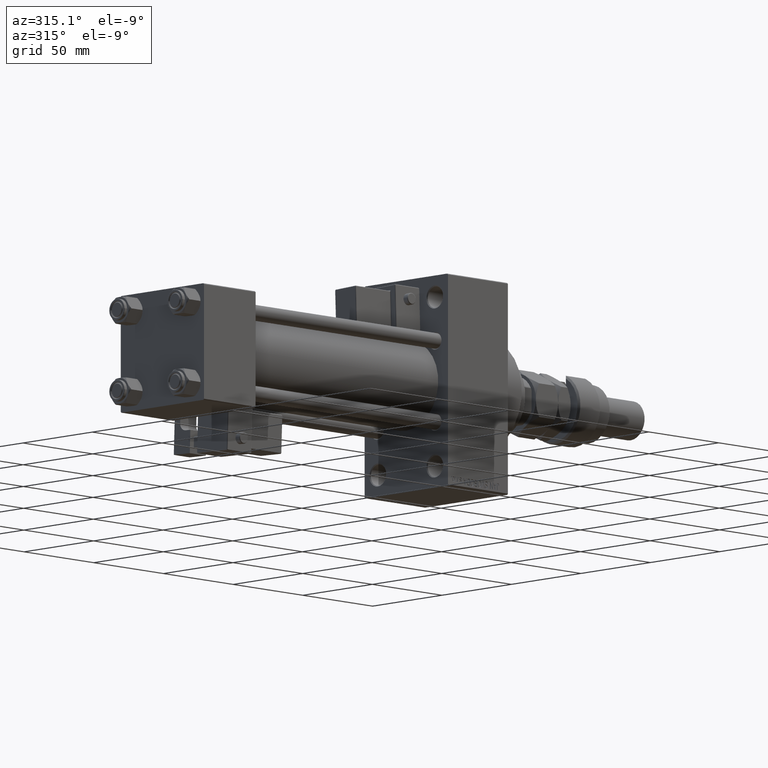
[diagram: clean part render]
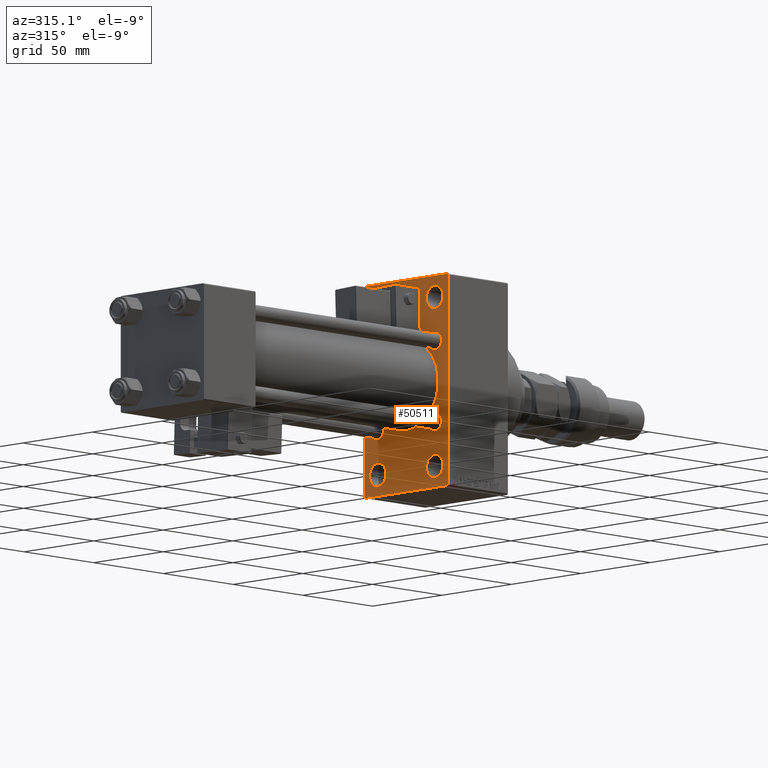
[diagram: same view with one face highlighted and labeled with its STEP entity id]
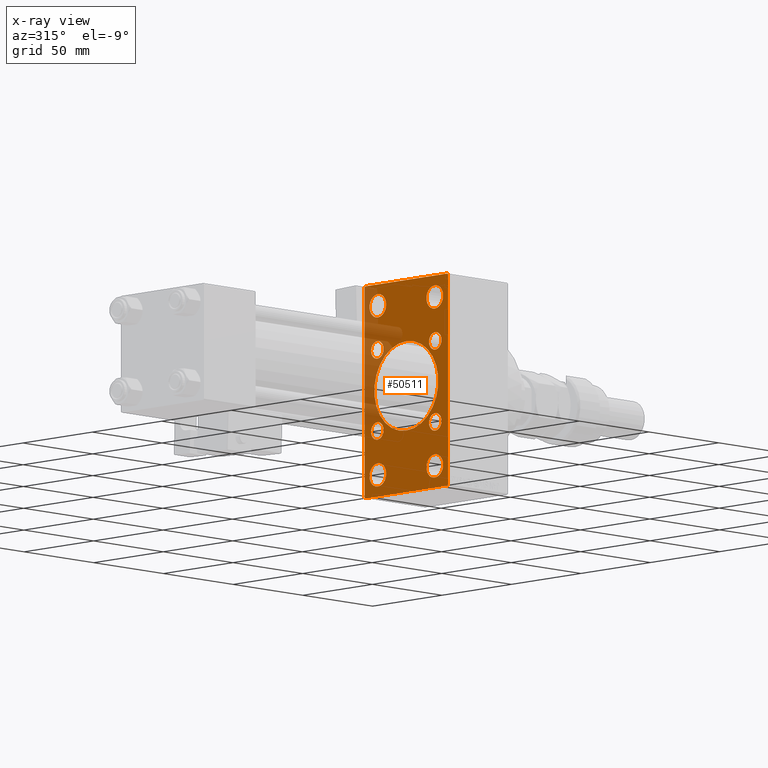
[diagram: x-ray of the same camera — body ghosted, the highlighted face saturated]
A machine part, auxiliary view. The second image highlights one B-rep face of the part: STEP entity #50511.
The next image is the same camera in x-ray: the body ghosted, the highlighted face saturated — about 18% of this face is hidden behind the body in this view.
In plain terms, the highlighted planar face has unit normal (-1, 0, 0).
Its self-contained STEP definition (entity closure, byte-faithful):
#94 = CARTESIAN_POINT ( 'NONE',  ( 175.0000000000000284, -20.50000000000000000, -37.50000000000015632 ) ) ;
#142 = CARTESIAN_POINT ( 'NONE',  ( 175.0000000000000284, -29.49999999999997513, -54.50000000000000000 ) ) ;
#506 = DIRECTION ( 'NONE',  ( 0.000000000000000000, -1.000000000000000000, -1.156482317317871478E-16 ) ) ;
#706 = FACE_BOUND ( 'NONE', #8835, .T. ) ;
#879 = CARTESIAN_POINT ( 'NONE',  ( 175.0000000000000284, -20.84999999999999076, -20.85000000000000497 ) ) ;
#1020 = ORIENTED_EDGE ( 'NONE', *, *, #11950, .F. ) ;
#1293 = LINE ( 'NONE', #9044, #45345 ) ;
#1540 = ORIENTED_EDGE ( 'NONE', *, *, #9082, .T. ) ;
#1542 = DIRECTION ( 'NONE',  ( 0.000000000000000000, 0.000000000000000000, 1.000000000000000000 ) ) ;
#1861 = DIRECTION ( 'NONE',  ( 0.000000000000000000, 0.000000000000000000, 1.000000000000000000 ) ) ;
#1889 = DIRECTION ( 'NONE',  ( 0.000000000000000000, 0.000000000000000000, 1.000000000000000000 ) ) ;
#1958 = DIRECTION ( 'NONE',  ( 0.000000000000000000, 0.000000000000000000, 1.000000000000000000 ) ) ;
#1980 = CARTESIAN_POINT ( 'NONE',  ( 175.0000000000000284, 2.146024240737016609E-16, -23.00000000000000000 ) ) ;
#2001 = DIRECTION ( 'NONE',  ( 0.000000000000000000, 0.000000000000000000, 1.000000000000000000 ) ) ;
#2384 = DIRECTION ( 'NONE',  ( 1.000000000000000000, -0.000000000000000000, 0.000000000000000000 ) ) ;
#2586 = CARTESIAN_POINT ( 'NONE',  ( 175.0000000000000284, 29.99999999999999645, -54.00000000000002132 ) ) ;
#2615 = LINE ( 'NONE', #19484, #51071 ) ;
#2727 = CARTESIAN_POINT ( 'NONE',  ( 175.0000000000000284, -20.84999999999999076, 16.34999999999999787 ) ) ;
#2896 = EDGE_CURVE ( 'NONE', #13635, #42155, #49731, .T. ) ;
#2927 = DIRECTION ( 'NONE',  ( 0.000000000000000000, 0.000000000000000000, 1.000000000000000000 ) ) ;
#3303 = EDGE_LOOP ( 'NONE', ( #7071, #8758 ) ) ;
#3494 = VERTEX_POINT ( 'NONE', #29138 ) ;
#3579 = CARTESIAN_POINT ( 'NONE',  ( 175.0000000000000284, -2.602085213965210642E-15, 0.000000000000000000 ) ) ;
#4135 = AXIS2_PLACEMENT_3D ( 'NONE', #43048, #29251, #46648 ) ;
#4187 = EDGE_CURVE ( 'NONE', #45127, #31761, #33213, .T. ) ;
#4719 = DIRECTION ( 'NONE',  ( 1.000000000000000000, -0.000000000000000000, 0.000000000000000000 ) ) ;
#5458 = DIRECTION ( 'NONE',  ( 1.000000000000000000, 0.000000000000000000, 0.000000000000000000 ) ) ;
#6017 = CIRCLE ( 'NONE', #8658, 5.999999999999838352 ) ;
#6352 = CARTESIAN_POINT ( 'NONE',  ( 175.0000000000000284, 20.50000000000000000, -49.49999999999983658 ) ) ;
#6489 = DIRECTION ( 'NONE',  ( 1.000000000000000000, -0.000000000000000000, 0.000000000000000000 ) ) ;
#6797 = VERTEX_POINT ( 'NONE', #2586 ) ;
#6933 = VECTOR ( 'NONE', #24032, 1000.000000000000000 ) ;
#7030 = VERTEX_POINT ( 'NONE', #1980 ) ;
#7040 = DIRECTION ( 'NONE',  ( 0.000000000000000000, 0.000000000000000000, 1.000000000000000000 ) ) ;
#7071 = ORIENTED_EDGE ( 'NONE', *, *, #4187, .T. ) ;
#7091 = DIRECTION ( 'NONE',  ( 0.000000000000000000, 0.000000000000000000, 1.000000000000000000 ) ) ;
#7095 = DIRECTION ( 'NONE',  ( 0.000000000000000000, 0.000000000000000000, 1.000000000000000000 ) ) ;
#7539 = EDGE_CURVE ( 'NONE', #51607, #53863, #32377, .T. ) ;
#7588 = EDGE_CURVE ( 'NONE', #26087, #13635, #46113, .T. ) ;
#7597 = CARTESIAN_POINT ( 'NONE',  ( 175.0000000000000284, 20.84999999999999787, -16.34999999999999432 ) ) ;
#7720 = AXIS2_PLACEMENT_3D ( 'NONE', #34809, #52221, #22116 ) ;
#8253 = CARTESIAN_POINT ( 'NONE',  ( 175.0000000000000284, 29.99999999999999645, -54.49999999999999289 ) ) ;
#8541 = VERTEX_POINT ( 'NONE', #44141 ) ;
#8658 = AXIS2_PLACEMENT_3D ( 'NONE', #28022, #6489, #7040 ) ;
#8758 = ORIENTED_EDGE ( 'NONE', *, *, #31280, .T. ) ;
#8835 = EDGE_LOOP ( 'NONE', ( #52134, #52389 ) ) ;
#9044 = CARTESIAN_POINT ( 'NONE',  ( 175.0000000000000284, -30.00000000000000000, 54.50000000000000000 ) ) ;
#9082 = EDGE_CURVE ( 'NONE', #7030, #13464, #27980, .T. ) ;
#9208 = DIRECTION ( 'NONE',  ( 1.000000000000000000, -0.000000000000000000, 0.000000000000000000 ) ) ;
#9537 = ORIENTED_EDGE ( 'NONE', *, *, #2896, .T. ) ;
#9610 = EDGE_LOOP ( 'NONE', ( #43848, #31065 ) ) ;
#9658 = CARTESIAN_POINT ( 'NONE',  ( 175.0000000000000284, 29.50000000000002132, -54.49999999999999289 ) ) ;
#9877 = CIRCLE ( 'NONE', #52213, 4.500000000000007105 ) ;
#9980 = CARTESIAN_POINT ( 'NONE',  ( 175.0000000000000284, 29.49999999999996803, 54.49999999999999289 ) ) ;
#10129 = CARTESIAN_POINT ( 'NONE',  ( 175.0000000000000284, -20.84999999999999076, 20.85000000000000497 ) ) ;
#10346 = CIRCLE ( 'NONE', #7720, 5.999999999999838352 ) ;
#10421 = CARTESIAN_POINT ( 'NONE',  ( 175.0000000000000284, -20.84999999999999076, 20.85000000000000497 ) ) ;
#10424 = DIRECTION ( 'NONE',  ( 1.000000000000000000, -0.000000000000000000, 0.000000000000000000 ) ) ;
#10553 = ORIENTED_EDGE ( 'NONE', *, *, #36800, .T. ) ;
#10706 = CARTESIAN_POINT ( 'NONE',  ( 175.0000000000000284, -20.50000000000000000, -43.50000000000000000 ) ) ;
#11042 = EDGE_CURVE ( 'NONE', #6797, #26087, #36355, .T. ) ;
#11056 = CARTESIAN_POINT ( 'NONE',  ( 175.0000000000000284, 29.99999999999999645, 54.49999999999999289 ) ) ;
#11057 = AXIS2_PLACEMENT_3D ( 'NONE', #36464, #11326, #32044 ) ;
#11066 = DIRECTION ( 'NONE',  ( 0.000000000000000000, 0.7071067811865474617, -0.7071067811865474617 ) ) ;
#11326 = DIRECTION ( 'NONE',  ( 1.000000000000000000, -0.000000000000000000, 0.000000000000000000 ) ) ;
#11362 = AXIS2_PLACEMENT_3D ( 'NONE', #47056, #9208, #38241 ) ;
#11383 = EDGE_CURVE ( 'NONE', #50423, #33395, #2615, .T. ) ;
#11746 = ORIENTED_EDGE ( 'NONE', *, *, #11383, .T. ) ;
#11950 = EDGE_CURVE ( 'NONE', #46604, #33395, #22959, .T. ) ;
#12771 = EDGE_CURVE ( 'NONE', #16549, #35217, #31699, .T. ) ;
#13037 = DIRECTION ( 'NONE',  ( 0.000000000000000000, 0.000000000000000000, 1.000000000000000000 ) ) ;
#13142 = FACE_BOUND ( 'NONE', #37863, .T. ) ;
#13464 = VERTEX_POINT ( 'NONE', #39676 ) ;
#13565 = CARTESIAN_POINT ( 'NONE',  ( 175.0000000000000284, 20.50000000000000000, 43.50000000000000000 ) ) ;
#13618 = AXIS2_PLACEMENT_3D ( 'NONE', #49101, #10424, #7095 ) ;
#13635 = VERTEX_POINT ( 'NONE', #142 ) ;
#13833 = VECTOR ( 'NONE', #506, 1000.000000000000000 ) ;
#13949 = FACE_BOUND ( 'NONE', #50047, .T. ) ;
#14460 = DIRECTION ( 'NONE',  ( 0.000000000000000000, 0.000000000000000000, -1.000000000000000000 ) ) ;
#15691 = AXIS2_PLACEMENT_3D ( 'NONE', #3579, #40881, #45037 ) ;
#15694 = DIRECTION ( 'NONE',  ( 0.000000000000000000, 0.000000000000000000, 1.000000000000000000 ) ) ;
#15730 = EDGE_LOOP ( 'NONE', ( #23105, #51773 ) ) ;
#15906 = CARTESIAN_POINT ( 'NONE',  ( 175.0000000000000284, 42.00000000000000711, -42.00000000000000711 ) ) ;
#16351 = CIRCLE ( 'NONE', #45451, 4.500000000000007105 ) ;
#16549 = VERTEX_POINT ( 'NONE', #34009 ) ;
#17148 = EDGE_CURVE ( 'NONE', #53863, #51607, #51272, .T. ) ;
#17557 = PLANE ( 'NONE',  #42992 ) ;
#17853 = DIRECTION ( 'NONE',  ( 1.000000000000000000, -0.000000000000000000, 0.000000000000000000 ) ) ;
#17896 = DIRECTION ( 'NONE',  ( 0.000000000000000000, 0.000000000000000000, -1.000000000000000000 ) ) ;
#17970 = ORIENTED_EDGE ( 'NONE', *, *, #42132, .T. ) ;
#18070 = CIRCLE ( 'NONE', #29556, 4.500000000000007105 ) ;
#18120 = CARTESIAN_POINT ( 'NONE',  ( 175.0000000000000284, -20.50000000000000000, 43.50000000000000000 ) ) ;
#18357 = VERTEX_POINT ( 'NONE', #34309 ) ;
#18813 = DIRECTION ( 'NONE',  ( 1.000000000000000000, -0.000000000000000000, 0.000000000000000000 ) ) ;
#19015 = DIRECTION ( 'NONE',  ( 1.000000000000000000, -0.000000000000000000, 0.000000000000000000 ) ) ;
#19198 = CARTESIAN_POINT ( 'NONE',  ( 175.0000000000000284, 20.50000000000000000, 37.50000000000015632 ) ) ;
#19484 = CARTESIAN_POINT ( 'NONE',  ( 175.0000000000000284, -42.00000000000011369, 41.99999999999982236 ) ) ;
#20116 = AXIS2_PLACEMENT_3D ( 'NONE', #10706, #43585, #1861 ) ;
#20892 = ORIENTED_EDGE ( 'NONE', *, *, #31600, .T. ) ;
#21072 = DIRECTION ( 'NONE',  ( 1.000000000000000000, -0.000000000000000000, 0.000000000000000000 ) ) ;
#21096 = EDGE_CURVE ( 'NONE', #31160, #38738, #9877, .T. ) ;
#22116 = DIRECTION ( 'NONE',  ( 0.000000000000000000, 0.000000000000000000, 1.000000000000000000 ) ) ;
#22736 = DIRECTION ( 'NONE',  ( 1.000000000000000000, -0.000000000000000000, 0.000000000000000000 ) ) ;
#22892 = EDGE_LOOP ( 'NONE', ( #33147, #32203 ) ) ;
#22907 = ORIENTED_EDGE ( 'NONE', *, *, #35475, .T. ) ;
#22959 = LINE ( 'NONE', #11056, #6933 ) ;
#23039 = CARTESIAN_POINT ( 'NONE',  ( 175.0000000000000284, 29.99999999999999645, 54.49999999999999289 ) ) ;
#23105 = ORIENTED_EDGE ( 'NONE', *, *, #33742, .T. ) ;
#23299 = ORIENTED_EDGE ( 'NONE', *, *, #7588, .T. ) ;
#23580 = LINE ( 'NONE', #23039, #31636 ) ;
#24032 = DIRECTION ( 'NONE',  ( 0.000000000000000000, -1.000000000000000000, 1.156482317317871478E-16 ) ) ;
#24296 = ORIENTED_EDGE ( 'NONE', *, *, #11042, .T. ) ;
#25387 = CARTESIAN_POINT ( 'NONE',  ( 175.0000000000000284, 20.50000000000000000, 49.49999999999983658 ) ) ;
#25708 = CARTESIAN_POINT ( 'NONE',  ( 175.0000000000000284, -20.84999999999999076, -20.85000000000000497 ) ) ;
#25946 = VERTEX_POINT ( 'NONE', #31812 ) ;
#26087 = VERTEX_POINT ( 'NONE', #9658 ) ;
#26088 = DIRECTION ( 'NONE',  ( -0.000000000000000000, 0.000000000000000000, 1.000000000000000000 ) ) ;
#26158 = AXIS2_PLACEMENT_3D ( 'NONE', #53543, #19015, #15694 ) ;
#26272 = VECTOR ( 'NONE', #32479, 1000.000000000000114 ) ;
#26289 = EDGE_CURVE ( 'NONE', #50423, #42155, #1293, .T. ) ;
#26365 = CARTESIAN_POINT ( 'NONE',  ( 175.0000000000000284, -30.00000000000000000, 54.00000000000002842 ) ) ;
#26495 = EDGE_LOOP ( 'NONE', ( #30622, #26641 ) ) ;
#26641 = ORIENTED_EDGE ( 'NONE', *, *, #12771, .T. ) ;
#26868 = AXIS2_PLACEMENT_3D ( 'NONE', #10129, #2384, #2927 ) ;
#27268 = EDGE_CURVE ( 'NONE', #8541, #54127, #37452, .T. ) ;
#27932 = AXIS2_PLACEMENT_3D ( 'NONE', #52452, #39745, #1889 ) ;
#27980 = CIRCLE ( 'NONE', #15691, 23.00000000000000000 ) ;
#28022 = CARTESIAN_POINT ( 'NONE',  ( 175.0000000000000284, 20.50000000000000000, -43.50000000000000000 ) ) ;
#28111 = EDGE_CURVE ( 'NONE', #35217, #16549, #18070, .T. ) ;
#28141 = AXIS2_PLACEMENT_3D ( 'NONE', #879, #18813, #1958 ) ;
#29138 = CARTESIAN_POINT ( 'NONE',  ( 175.0000000000000284, -20.50000000000000000, 49.49999999999983658 ) ) ;
#29251 = DIRECTION ( 'NONE',  ( 1.000000000000000000, -0.000000000000000000, 0.000000000000000000 ) ) ;
#29556 = AXIS2_PLACEMENT_3D ( 'NONE', #25708, #4719, #43122 ) ;
#29710 = FACE_BOUND ( 'NONE', #15730, .T. ) ;
#29983 = FACE_OUTER_BOUND ( 'NONE', #35528, .T. ) ;
#30196 = CARTESIAN_POINT ( 'NONE',  ( 175.0000000000000284, -20.50000000000000000, -49.49999999999983658 ) ) ;
#30530 = VECTOR ( 'NONE', #11066, 1000.000000000000114 ) ;
#30622 = ORIENTED_EDGE ( 'NONE', *, *, #28111, .T. ) ;
#31065 = ORIENTED_EDGE ( 'NONE', *, *, #7539, .T. ) ;
#31160 = VERTEX_POINT ( 'NONE', #42379 ) ;
#31280 = EDGE_CURVE ( 'NONE', #31761, #45127, #16351, .T. ) ;
#31483 = AXIS2_PLACEMENT_3D ( 'NONE', #34208, #5458, #17896 ) ;
#31600 = EDGE_CURVE ( 'NONE', #18357, #35341, #33116, .T. ) ;
#31636 = VECTOR ( 'NONE', #14460, 1000.000000000000000 ) ;
#31699 = CIRCLE ( 'NONE', #28141, 4.500000000000007105 ) ;
#31761 = VERTEX_POINT ( 'NONE', #42993 ) ;
#31812 = CARTESIAN_POINT ( 'NONE',  ( 175.0000000000000284, -20.50000000000000000, 37.50000000000015632 ) ) ;
#32044 = DIRECTION ( 'NONE',  ( 0.000000000000000000, 0.000000000000000000, 1.000000000000000000 ) ) ;
#32203 = ORIENTED_EDGE ( 'NONE', *, *, #51985, .T. ) ;
#32220 = CARTESIAN_POINT ( 'NONE',  ( 175.0000000000000284, -30.00000000000000000, -53.99999999999995737 ) ) ;
#32377 = CIRCLE ( 'NONE', #4135, 5.999999999999838352 ) ;
#32479 = DIRECTION ( 'NONE',  ( -0.000000000000000000, -0.7071067811865474617, -0.7071067811865474617 ) ) ;
#32883 = LINE ( 'NONE', #40895, #30530 ) ;
#33116 = CIRCLE ( 'NONE', #11057, 5.999999999999838352 ) ;
#33147 = ORIENTED_EDGE ( 'NONE', *, *, #35158, .T. ) ;
#33213 = CIRCLE ( 'NONE', #26158, 4.500000000000007105 ) ;
#33395 = VERTEX_POINT ( 'NONE', #42866 ) ;
#33599 = EDGE_CURVE ( 'NONE', #46604, #48524, #32883, .T. ) ;
#33742 = EDGE_CURVE ( 'NONE', #54127, #8541, #37647, .T. ) ;
#34009 = CARTESIAN_POINT ( 'NONE',  ( 175.0000000000000284, -20.84999999999999076, -25.35000000000001208 ) ) ;
#34208 = CARTESIAN_POINT ( 'NONE',  ( 175.0000000000000284, -2.602085213965210642E-15, 0.000000000000000000 ) ) ;
#34309 = CARTESIAN_POINT ( 'NONE',  ( 175.0000000000000284, 20.50000000000000000, -37.50000000000015632 ) ) ;
#34404 = CARTESIAN_POINT ( 'NONE',  ( 175.0000000000000284, 0.000000000000000000, 0.000000000000000000 ) ) ;
#34726 = ORIENTED_EDGE ( 'NONE', *, *, #26289, .F. ) ;
#34809 = CARTESIAN_POINT ( 'NONE',  ( 175.0000000000000284, -20.50000000000000000, -43.50000000000000000 ) ) ;
#34817 = CIRCLE ( 'NONE', #26868, 4.500000000000007105 ) ;
#34841 = ORIENTED_EDGE ( 'NONE', *, *, #37932, .T. ) ;
#35002 = DIRECTION ( 'NONE',  ( 0.000000000000000000, 0.000000000000000000, -1.000000000000000000 ) ) ;
#35158 = EDGE_CURVE ( 'NONE', #39204, #36164, #10346, .T. ) ;
#35217 = VERTEX_POINT ( 'NONE', #49176 ) ;
#35341 = VERTEX_POINT ( 'NONE', #6352 ) ;
#35475 = EDGE_CURVE ( 'NONE', #13464, #7030, #45624, .T. ) ;
#35528 = EDGE_LOOP ( 'NONE', ( #23299, #9537, #34726, #11746, #1020, #48456, #34841, #24296 ) ) ;
#36161 = CARTESIAN_POINT ( 'NONE',  ( 175.0000000000000284, 20.84999999999999787, 25.35000000000000853 ) ) ;
#36164 = VERTEX_POINT ( 'NONE', #30196 ) ;
#36355 = LINE ( 'NONE', #15906, #26272 ) ;
#36464 = CARTESIAN_POINT ( 'NONE',  ( 175.0000000000000284, 20.50000000000000000, -43.50000000000000000 ) ) ;
#36800 = EDGE_CURVE ( 'NONE', #35341, #18357, #6017, .T. ) ;
#37452 = CIRCLE ( 'NONE', #13618, 4.500000000000007105 ) ;
#37564 = CARTESIAN_POINT ( 'NONE',  ( 175.0000000000000284, -42.00000000000049738, -41.99999999999904077 ) ) ;
#37647 = CIRCLE ( 'NONE', #27932, 4.500000000000007105 ) ;
#37863 = EDGE_LOOP ( 'NONE', ( #22907, #1540 ) ) ;
#37932 = EDGE_CURVE ( 'NONE', #48524, #6797, #23580, .T. ) ;
#38241 = DIRECTION ( 'NONE',  ( 0.000000000000000000, 0.000000000000000000, 1.000000000000000000 ) ) ;
#38278 = FACE_BOUND ( 'NONE', #22892, .T. ) ;
#38459 = AXIS2_PLACEMENT_3D ( 'NONE', #18120, #17853, #1542 ) ;
#38738 = VERTEX_POINT ( 'NONE', #2727 ) ;
#39204 = VERTEX_POINT ( 'NONE', #94 ) ;
#39676 = CARTESIAN_POINT ( 'NONE',  ( 175.0000000000000284, -2.602085213965210642E-15, 23.00000000000000000 ) ) ;
#39745 = DIRECTION ( 'NONE',  ( 1.000000000000000000, -0.000000000000000000, 0.000000000000000000 ) ) ;
#40881 = DIRECTION ( 'NONE',  ( 1.000000000000000000, 0.000000000000000000, 0.000000000000000000 ) ) ;
#40895 = CARTESIAN_POINT ( 'NONE',  ( 175.0000000000000284, 41.99999999999997158, 41.99999999999997158 ) ) ;
#42132 = EDGE_CURVE ( 'NONE', #38738, #31160, #34817, .T. ) ;
#42155 = VERTEX_POINT ( 'NONE', #32220 ) ;
#42158 = FACE_BOUND ( 'NONE', #3303, .T. ) ;
#42379 = CARTESIAN_POINT ( 'NONE',  ( 175.0000000000000284, -20.84999999999999076, 25.35000000000001208 ) ) ;
#42866 = CARTESIAN_POINT ( 'NONE',  ( 175.0000000000000284, -29.50000000000002842, 54.50000000000000000 ) ) ;
#42992 = AXIS2_PLACEMENT_3D ( 'NONE', #34404, #51261, #26088 ) ;
#42993 = CARTESIAN_POINT ( 'NONE',  ( 175.0000000000000284, 20.84999999999999787, 16.34999999999999432 ) ) ;
#43048 = CARTESIAN_POINT ( 'NONE',  ( 175.0000000000000284, 20.50000000000000000, 43.50000000000000000 ) ) ;
#43122 = DIRECTION ( 'NONE',  ( 0.000000000000000000, 0.000000000000000000, 1.000000000000000000 ) ) ;
#43585 = DIRECTION ( 'NONE',  ( 1.000000000000000000, -0.000000000000000000, 0.000000000000000000 ) ) ;
#43728 = CARTESIAN_POINT ( 'NONE',  ( 175.0000000000000284, 20.84999999999999787, 20.85000000000000142 ) ) ;
#43848 = ORIENTED_EDGE ( 'NONE', *, *, #17148, .T. ) ;
#44141 = CARTESIAN_POINT ( 'NONE',  ( 175.0000000000000284, 20.84999999999999787, -25.35000000000000853 ) ) ;
#44447 = EDGE_CURVE ( 'NONE', #3494, #25946, #49072, .T. ) ;
#45037 = DIRECTION ( 'NONE',  ( 0.000000000000000000, 0.000000000000000000, -1.000000000000000000 ) ) ;
#45127 = VERTEX_POINT ( 'NONE', #36161 ) ;
#45345 = VECTOR ( 'NONE', #35002, 1000.000000000000000 ) ;
#45451 = AXIS2_PLACEMENT_3D ( 'NONE', #43728, #22736, #2001 ) ;
#45624 = CIRCLE ( 'NONE', #31483, 23.00000000000000000 ) ;
#45797 = CIRCLE ( 'NONE', #11362, 5.999999999999838352 ) ;
#45977 = CARTESIAN_POINT ( 'NONE',  ( 175.0000000000000284, 29.99999999999999645, 53.99999999999996447 ) ) ;
#46113 = LINE ( 'NONE', #8253, #13833 ) ;
#46604 = VERTEX_POINT ( 'NONE', #9980 ) ;
#46648 = DIRECTION ( 'NONE',  ( 0.000000000000000000, 0.000000000000000000, 1.000000000000000000 ) ) ;
#46844 = AXIS2_PLACEMENT_3D ( 'NONE', #13565, #21072, #13037 ) ;
#47056 = CARTESIAN_POINT ( 'NONE',  ( 175.0000000000000284, -20.50000000000000000, 43.50000000000000000 ) ) ;
#47648 = FACE_BOUND ( 'NONE', #48955, .T. ) ;
#48456 = ORIENTED_EDGE ( 'NONE', *, *, #33599, .T. ) ;
#48524 = VERTEX_POINT ( 'NONE', #45977 ) ;
#48813 = DIRECTION ( 'NONE',  ( 1.000000000000000000, -0.000000000000000000, 0.000000000000000000 ) ) ;
#48955 = EDGE_LOOP ( 'NONE', ( #20892, #10553 ) ) ;
#49072 = CIRCLE ( 'NONE', #38459, 5.999999999999838352 ) ;
#49101 = CARTESIAN_POINT ( 'NONE',  ( 175.0000000000000284, 20.84999999999999787, -20.85000000000000142 ) ) ;
#49176 = CARTESIAN_POINT ( 'NONE',  ( 175.0000000000000284, -20.84999999999999076, -16.34999999999999787 ) ) ;
#49731 = LINE ( 'NONE', #37564, #53439 ) ;
#50013 = DIRECTION ( 'NONE',  ( 0.000000000000000000, -0.7071067811865352493, 0.7071067811865597852 ) ) ;
#50047 = EDGE_LOOP ( 'NONE', ( #52462, #17970 ) ) ;
#50423 = VERTEX_POINT ( 'NONE', #26365 ) ;
#50511 = ADVANCED_FACE ( 'NONE', ( #706, #38278, #47648, #51802, #13949, #42158, #29710, #50987, #13142, #29983 ), #17557, .T. ) ;
#50987 = FACE_BOUND ( 'NONE', #26495, .T. ) ;
#51000 = CIRCLE ( 'NONE', #20116, 5.999999999999838352 ) ;
#51071 = VECTOR ( 'NONE', #53184, 1000.000000000000000 ) ;
#51261 = DIRECTION ( 'NONE',  ( -1.000000000000000000, 0.000000000000000000, -0.000000000000000000 ) ) ;
#51272 = CIRCLE ( 'NONE', #46844, 5.999999999999838352 ) ;
#51607 = VERTEX_POINT ( 'NONE', #19198 ) ;
#51773 = ORIENTED_EDGE ( 'NONE', *, *, #27268, .T. ) ;
#51802 = FACE_BOUND ( 'NONE', #9610, .T. ) ;
#51985 = EDGE_CURVE ( 'NONE', #36164, #39204, #51000, .T. ) ;
#52134 = ORIENTED_EDGE ( 'NONE', *, *, #44447, .T. ) ;
#52213 = AXIS2_PLACEMENT_3D ( 'NONE', #10421, #48813, #7091 ) ;
#52221 = DIRECTION ( 'NONE',  ( 1.000000000000000000, -0.000000000000000000, 0.000000000000000000 ) ) ;
#52389 = ORIENTED_EDGE ( 'NONE', *, *, #54182, .T. ) ;
#52452 = CARTESIAN_POINT ( 'NONE',  ( 175.0000000000000284, 20.84999999999999787, -20.85000000000000142 ) ) ;
#52462 = ORIENTED_EDGE ( 'NONE', *, *, #21096, .T. ) ;
#53184 = DIRECTION ( 'NONE',  ( -0.000000000000000000, 0.7071067811865450192, 0.7071067811865500152 ) ) ;
#53439 = VECTOR ( 'NONE', #50013, 1000.000000000000000 ) ;
#53543 = CARTESIAN_POINT ( 'NONE',  ( 175.0000000000000284, 20.84999999999999787, 20.85000000000000142 ) ) ;
#53863 = VERTEX_POINT ( 'NONE', #25387 ) ;
#54127 = VERTEX_POINT ( 'NONE', #7597 ) ;
#54182 = EDGE_CURVE ( 'NONE', #25946, #3494, #45797, .T. ) ;